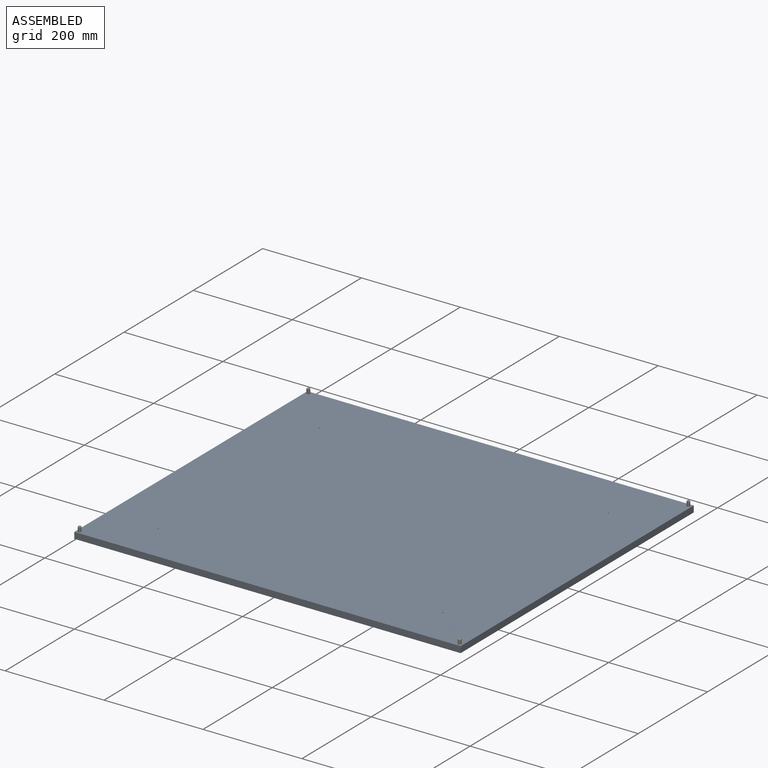
[diagram: assembled view]
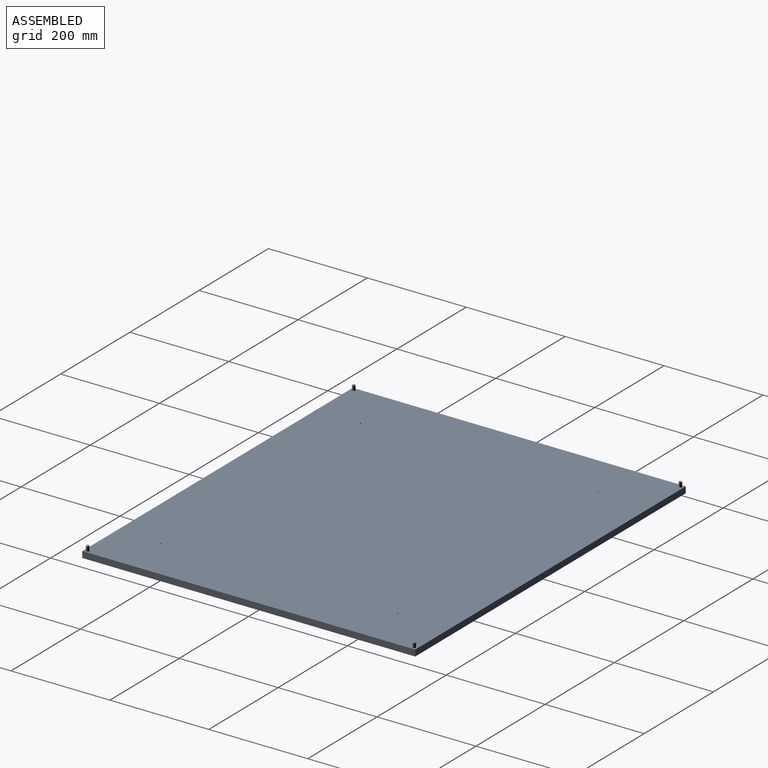
[diagram: assembled view, second angle]
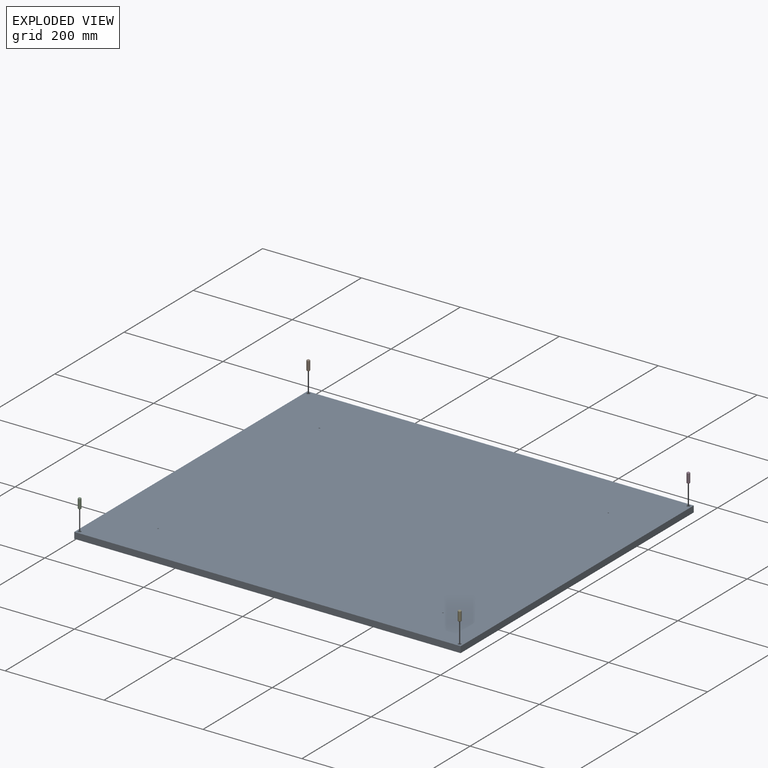
[diagram: exploded view]
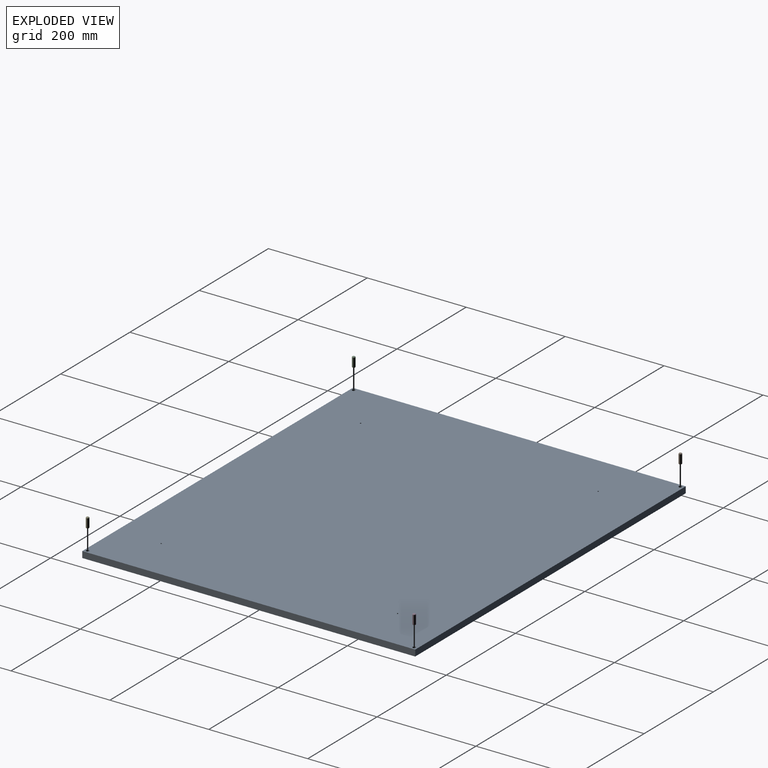
[diagram: exploded view, second angle]
ASSEMBLY  parts=5 mates=4
PART A: 22 faces, bbox 781.1x673.1x12.7 mm
  f0: plane 781.05x673.1mm, normal (0,0,1), area 525575.1mm2, adj f1,f2,f3,f4,f6,f8,f10,f12
  f1: plane 673.1x12.7mm, normal (-1,0,0), area 8548.4mm2, adj f0,f2,f4,f5
  f2: plane 781.05x12.7mm, normal (0,1,0), area 9919.3mm2, adj f0,f1,f3,f5
  f3: plane 673.1x12.7mm, normal (1,0,0), area 8548.4mm2, adj f0,f2,f4,f5
  f4: plane 781.05x12.7mm, normal (0,-1,0), area 9919.3mm2, adj f0,f1,f3,f5
  f5: plane 781.05x673.1mm, normal (0,0,-1), area 525724.8mm2, adj f1,f2,f3,f4
  f6: cylinder r=1.35mm len=7.45mm, axis (0,0,1), area 63.3mm2, adj f0,f7
  f7: cone r=0mm half-angle=59deg, axis (0,0,1), area 6.7mm2, adj f6
  f8: cylinder r=1.35mm len=7.45mm, axis (0,0,1), area 63.3mm2, adj f0,f9
  f9: cone r=0mm half-angle=59deg, axis (0,0,1), area 6.7mm2, adj f8
  f10: cylinder r=1.35mm len=7.45mm, axis (0,0,1), area 63.3mm2, adj f0,f11
  f11: cone r=0mm half-angle=59deg, axis (0,0,1), area 6.7mm2, adj f10
  f12: cylinder r=1.35mm len=7.45mm, axis (0,0,1), area 63.3mm2, adj f0,f13
  f13: cone r=0mm half-angle=59deg, axis (0,0,1), area 6.7mm2, adj f12
  f14: cylinder r=3.17mm len=10mm, axis (0,0,1), area 199.5mm2, adj f0,f15
  f15: plane 6.35x6.35mm, normal (0,0,1), area 31.7mm2, adj f14
  f16: cylinder r=3.17mm len=10mm, axis (0,0,1), area 199.5mm2, adj f0,f17
  f17: plane 6.35x6.35mm, normal (0,0,1), area 31.7mm2, adj f16
  f18: cylinder r=3.17mm len=10mm, axis (0,0,1), area 199.5mm2, adj f0,f19
  f19: plane 6.35x6.35mm, normal (0,0,1), area 31.7mm2, adj f18
  f20: cylinder r=3.17mm len=10mm, axis (0,0,1), area 199.5mm2, adj f0,f21
  f21: plane 6.35x6.35mm, normal (0,0,1), area 31.7mm2, adj f20
PART B: 5 faces, bbox 6.4x6.4x20 mm
  f0: cylinder r=3.17mm len=18mm, axis (0,0,-1), area 359.1mm2, adj f3,f4
  f1: plane 4.35x4.35mm, normal (0,0,1), area 14.9mm2, adj f4
  f2: plane 4.35x4.35mm, normal (0,0,-1), area 14.9mm2, adj f3
  f3: cone r=3.17mm half-angle=45deg, axis (0,0,1), area 23.8mm2, adj f0,f2
  f4: cone r=2.17mm half-angle=45deg, axis (0,0,-1), area 23.8mm2, adj f0,f1
PART C: same geometry as B
PART D: same geometry as B
PART E: same geometry as B
PLACE A t=(27.73,-324.09,486.48)mm
PLACE B t=(27.73,-324.09,486.48)mm
PLACE C t=(27.73,-984.49,486.48)mm
PLACE D t=(796.08,-324.09,486.48)mm
PLACE E t=(796.08,-984.49,486.48)mm
MATE fastened C.f0 <-> A.f20  axis (0,0,-1) through (-377.48,-331.45,-9.36)mm
MATE fastened D.f0 <-> A.f18  axis (0,0,-1) through (390.87,328.95,-9.36)mm
MATE fastened E.f0 <-> A.f16  axis (0,0,-1) through (390.87,-331.45,-9.36)mm
MATE fastened B.f0 <-> A.f14  axis (0,0,-1) through (-377.48,328.95,-9.36)mm
